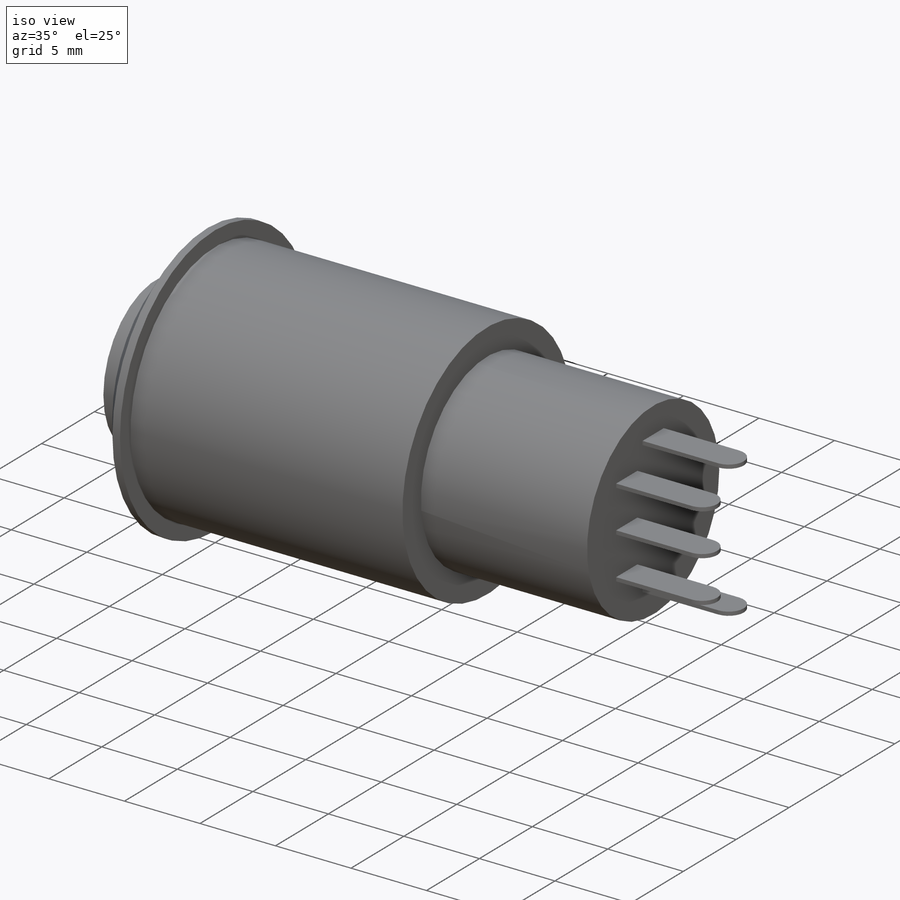
[diagram: iso view]
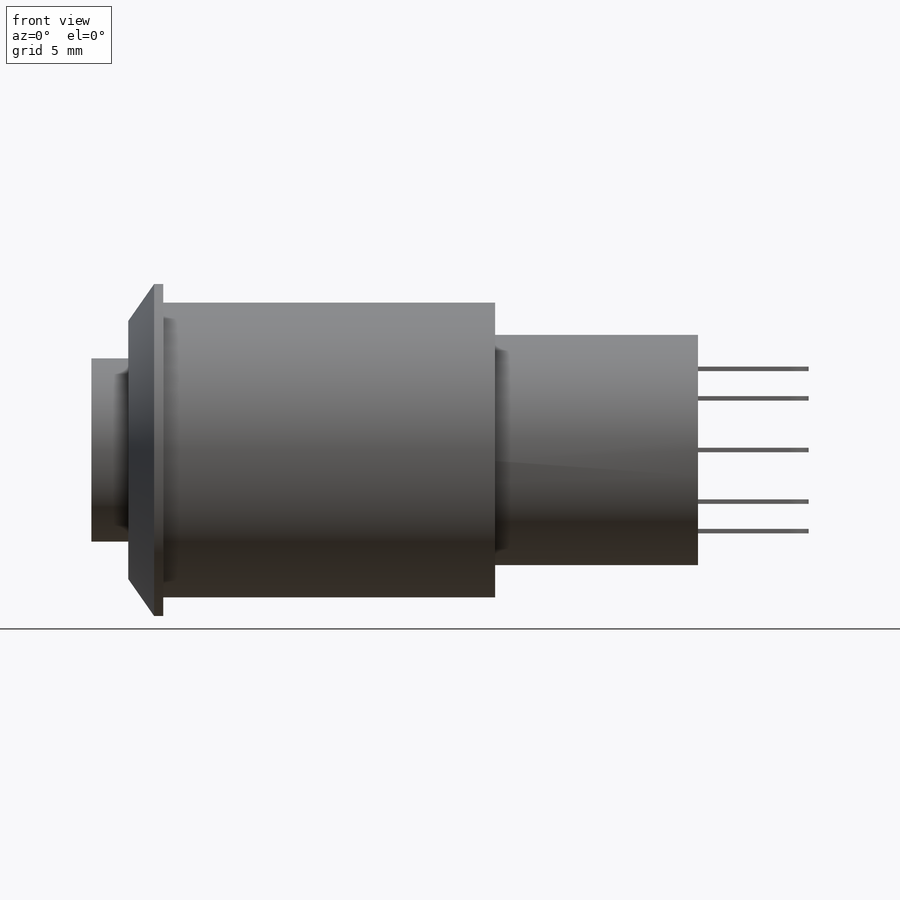
[diagram: front view]
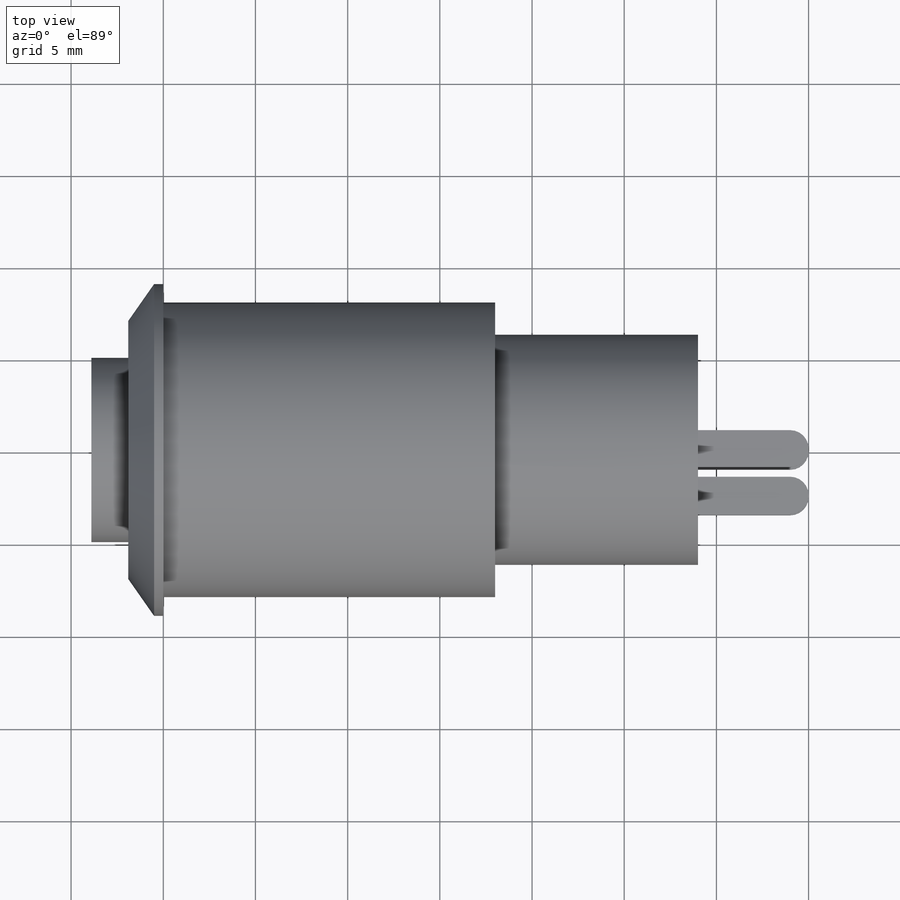
[diagram: top view]
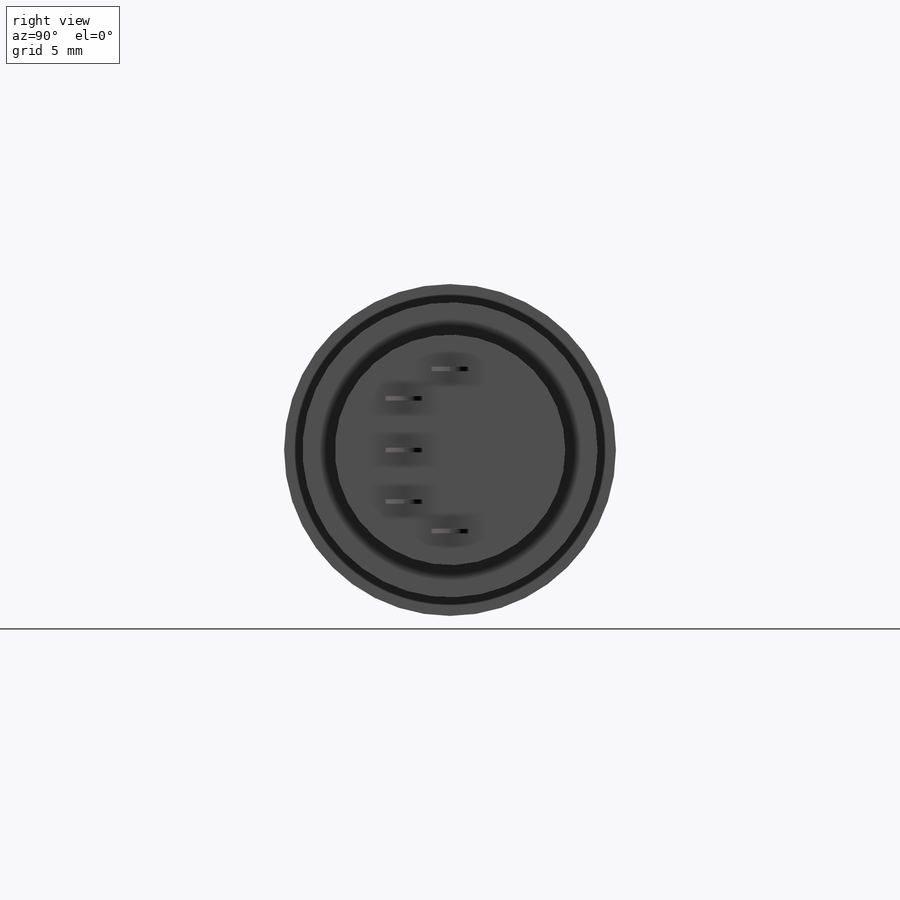
[diagram: right view]
SOLIDWORKS PART (.sldprt)
format: sldprt  version: not decoded by parser v0  size: 249,344 bytes
history: native  units: mm
features: plane x3, sketch x2, material x1, revolve x1, extrude x1, fillet x1 (+13 scaffold rows collapsed)
feature tree (22):
  scaffold x13  (default folders/planes/origin — collapsed)
  material  "Material <sin especificar>"
  plane  "Alzado"
  plane  "Planta"
  plane  "Vista lateral"
  sketch  "Croquis1"  dims[c1.D1=3.9mm c1.D2=5.0mm c1.D3=9.0mm c1.D4=0.1mm c1.D5=8.0mm c1.D6=2.0mm c1.D7=0.5mm c1.D8=1.5mm c2.D1=1.5mm c2.D8=3.9mm c2.D7=2.4mm c3.D1=0.5mm c3.D7=2.0mm c3.D9=18.0mm c3.D10=6.25mm c3.D11=11.0mm]
  revolve  "Revolución1"  Angle=360deg
  sketch  "Croquis2"  dims[D1=2.5mm D2=4.4mm D3=2.0mm D4=0.25mm D5=2.8mm]
  extrude  "Saliente-Extruir1"  Depth=6mm
  fillet  "Redondeo1"  Radius=1mm
decode coverage: 5 of 5 modeling features carry decoded parameters
note: suppression state not decoded; provenance and decode notes live in map.json
